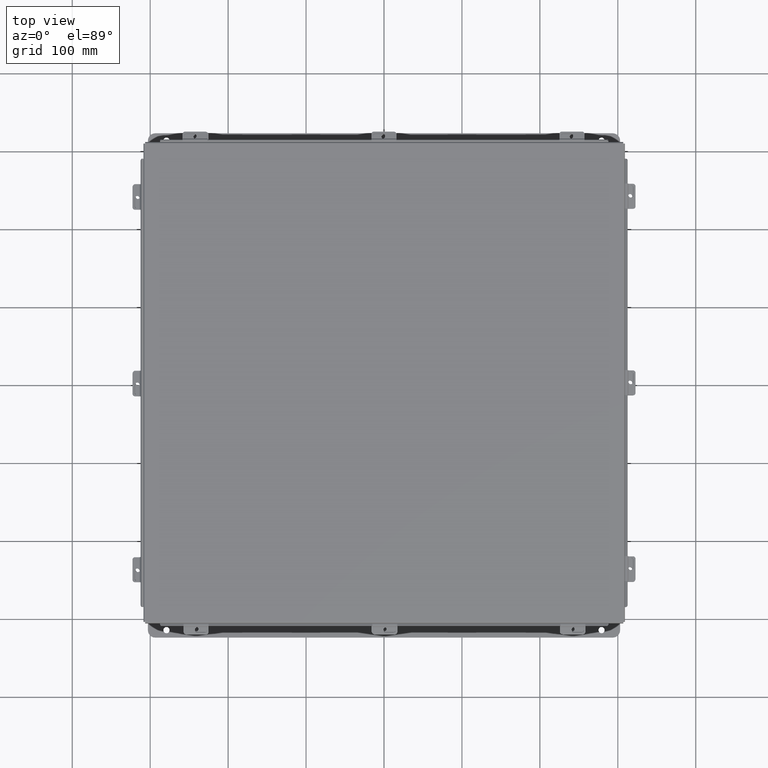
[diagram: clean part render]
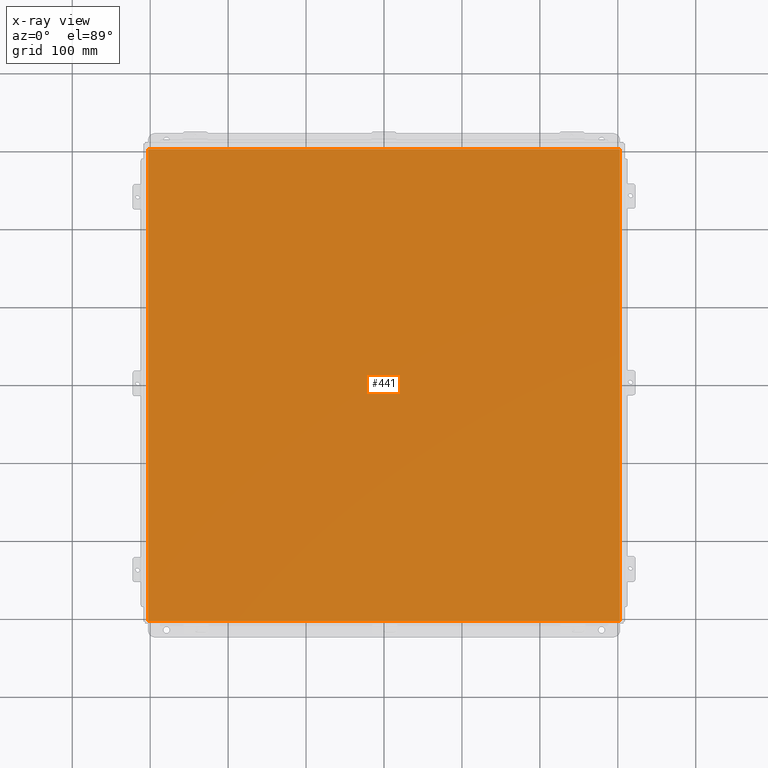
[diagram: x-ray — body ghosted, one internal face saturated and labeled with its STEP entity id]
A machine part, top view, then the same camera in x-ray: the body is ghosted and one INTERNAL B-rep face — a face not visible from any outside direction — is saturated and labeled: STEP entity #441.
In plain terms, the highlighted planar face has unit normal (0, 0, -1).
Its self-contained STEP definition (entity closure, byte-faithful):
#441 = ADVANCED_FACE ( 'NONE', ( #9227 ), #9818, .F. ) ;
#1603 = CARTESIAN_POINT ( 'NONE',  ( 11.91230000000000000, 11.92529999999999800, 5.122214988120493500E-017 ) ) ;
#2167 = LINE ( 'NONE', #6869, #4640 ) ;
#2285 = ORIENTED_EDGE ( 'NONE', *, *, #4445, .F. ) ;
#2402 = LINE ( 'NONE', #8652, #8584 ) ;
#2443 = ORIENTED_EDGE ( 'NONE', *, *, #3927, .F. ) ;
#2900 = VERTEX_POINT ( 'NONE', #6572 ) ;
#3927 = EDGE_CURVE ( 'NONE', #6595, #2900, #2167, .T. ) ;
#3972 = AXIS2_PLACEMENT_3D ( 'NONE', #7311, #4304, #8421 ) ;
#4287 = DIRECTION ( 'NONE',  ( -0.0000000000000000000, 1.000000000000000000, -0.0000000000000000000 ) ) ;
#4304 = DIRECTION ( 'NONE',  ( 0.0000000000000000000, 0.0000000000000000000, -1.000000000000000000 ) ) ;
#4445 = EDGE_CURVE ( 'NONE', #6986, #8556, #7799, .T. ) ;
#4539 = CARTESIAN_POINT ( 'NONE',  ( 11.91230000000000000, -11.92530000000000000, 5.122214988120493500E-017 ) ) ;
#4640 = VECTOR ( 'NONE', #4287, 39.37007874015748100 ) ;
#4726 = EDGE_CURVE ( 'NONE', #6595, #8556, #2402, .T. ) ;
#4863 = ORIENTED_EDGE ( 'NONE', *, *, #4726, .T. ) ;
#5625 = CARTESIAN_POINT ( 'NONE',  ( -12.00000000000000200, 11.92530000000000000, 0.0000000000000000000 ) ) ;
#5726 = CARTESIAN_POINT ( 'NONE',  ( 11.91230000000000000, 11.92530000000000000, 5.122214988120493500E-017 ) ) ;
#5918 = DIRECTION ( 'NONE',  ( -0.0000000000000000000, -1.000000000000000000, -0.0000000000000000000 ) ) ;
#6050 = DIRECTION ( 'NONE',  ( -1.000000000000000000, -0.0000000000000000000, -0.0000000000000000000 ) ) ;
#6572 = CARTESIAN_POINT ( 'NONE',  ( -11.91230000000000000, 11.92530000000000000, 5.122214988120493500E-017 ) ) ;
#6595 = VERTEX_POINT ( 'NONE', #8269 ) ;
#6869 = CARTESIAN_POINT ( 'NONE',  ( -11.91230000000000000, -11.92530000000000000, 5.122214988120493500E-017 ) ) ;
#6986 = VERTEX_POINT ( 'NONE', #1603 ) ;
#7226 = EDGE_CURVE ( 'NONE', #6986, #2900, #9243, .T. ) ;
#7311 = CARTESIAN_POINT ( 'NONE',  ( 0.0000000000000000000, 0.0000000000000000000, 0.0000000000000000000 ) ) ;
#7523 = VECTOR ( 'NONE', #6050, 39.37007874015748100 ) ;
#7799 = LINE ( 'NONE', #5726, #10071 ) ;
#8039 = ORIENTED_EDGE ( 'NONE', *, *, #7226, .T. ) ;
#8104 = EDGE_LOOP ( 'NONE', ( #2285, #8039, #2443, #4863 ) ) ;
#8269 = CARTESIAN_POINT ( 'NONE',  ( -11.91230000000000000, -11.92529999999999800, 5.122214988120493500E-017 ) ) ;
#8421 = DIRECTION ( 'NONE',  ( -1.000000000000000000, 0.0000000000000000000, -0.0000000000000000000 ) ) ;
#8556 = VERTEX_POINT ( 'NONE', #4539 ) ;
#8584 = VECTOR ( 'NONE', #9911, 39.37007874015748100 ) ;
#8652 = CARTESIAN_POINT ( 'NONE',  ( -12.00000000000000200, -11.92530000000000000, 0.0000000000000000000 ) ) ;
#9227 = FACE_OUTER_BOUND ( 'NONE', #8104, .T. ) ;
#9243 = LINE ( 'NONE', #5625, #7523 ) ;
#9818 = PLANE ( 'NONE',  #3972 ) ;
#9911 = DIRECTION ( 'NONE',  ( 1.000000000000000000, 0.0000000000000000000, 0.0000000000000000000 ) ) ;
#10071 = VECTOR ( 'NONE', #5918, 39.37007874015748100 ) ;